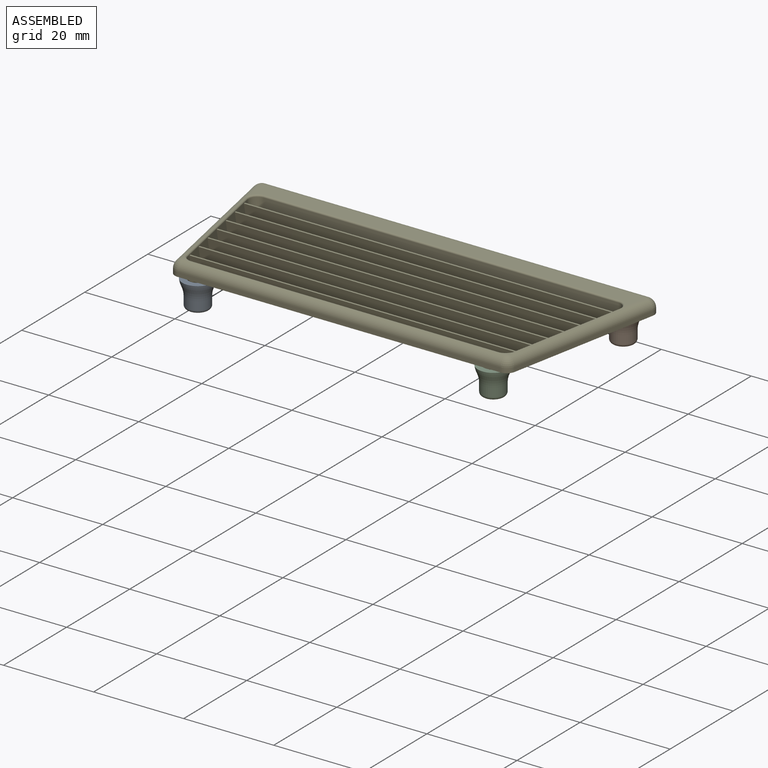
[diagram: assembled view]
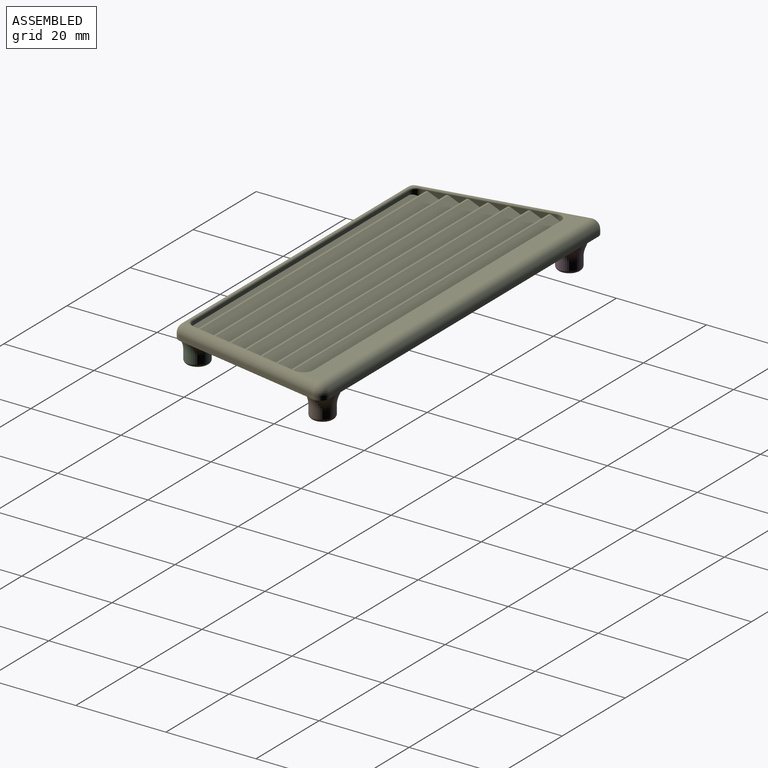
[diagram: assembled view, second angle]
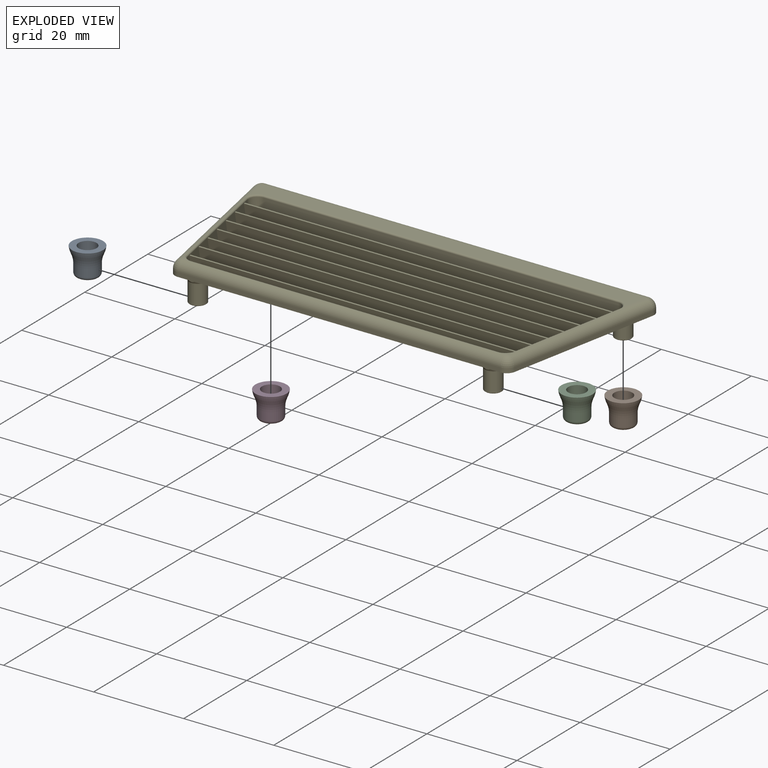
[diagram: exploded view]
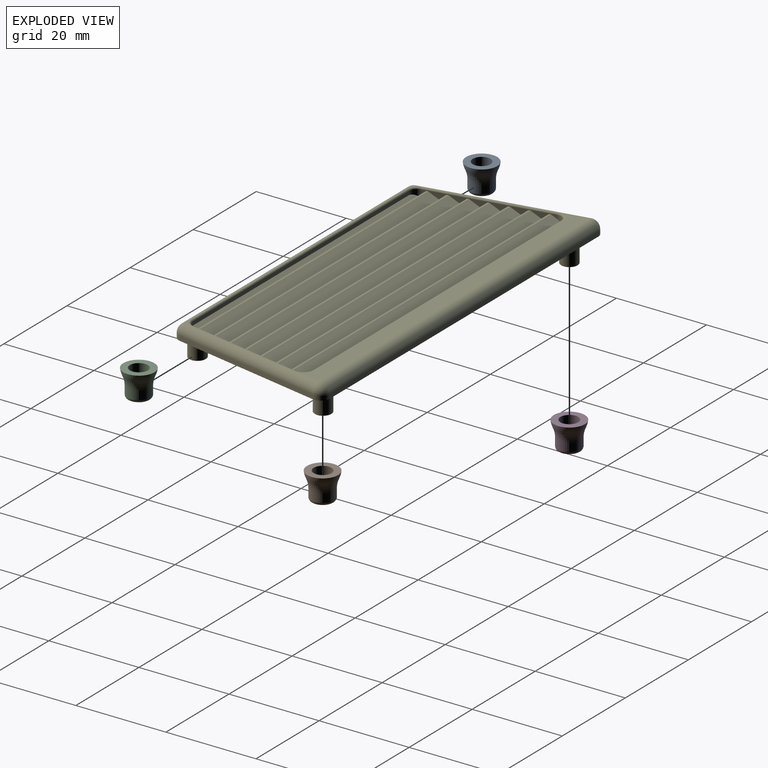
[diagram: exploded view, second angle]
ASSEMBLY  parts=5 mates=2
PART A: 12 faces, bbox 8.8x8.8x7.1 mm
  f0: cylinder r=2.6mm len=5.2mm, axis (0,0,-1), area 29.2mm2, adj f6,f10
  f1: plane 3.7x3.7mm, normal (0,0,1), area 7.1mm2, adj f5,f6
  f2: plane 6.91x6.91mm, normal (0,0,-1), area 24.9mm2, adj f3,f11
  f3: cylinder r=2mm len=4.66mm, axis (0,0,-1), area 58.5mm2, adj f2,f9
  f4: plane 3.32x3.32mm, normal (0,0,-1), area 5mm2, adj f5,f8
  f5: cylinder r=1.07mm len=2.15mm, axis (0,0,-1), area 6.8mm2, adj f1,f4
  f6: torus R=1.85mm, axis (0,0,1), area 17.2mm2, adj f0,f1
  f7: cone r=2mm half-angle=45deg, axis (0,0,-1), area 4mm2, adj f8,f9
  f8: torus R=1.66mm, axis (0,0,1), area 0.8mm2, adj f4,f7
  f9: torus R=1.9mm, axis (0,0,1), area 1mm2, adj f3,f7
  f10: torus R=7.6mm, axis (0,0,-1), area 36.9mm2, adj f0,f11
  f11: revolved ~6.91x6.91mm, area 30mm2, adj f2,f10
PART B: same geometry as A
PART C: same geometry as A
PART D: same geometry as A
PART E: 99 faces, bbox 89.1x38.4x8 mm
  f0: plane 76.04x2.5mm, normal (0,-0.97,-0.26), area 196.5mm2, adj f2,f3,f5,f6
  f1: plane 77.3x0.5mm, normal (0,1,0), area 38.6mm2, adj f3,f4,f5,f6
  f2: plane 75.94x0.4mm, normal (0,0,1), area 30.5mm2, adj f0,f4,f5,f6
  f3: plane 89.14x38.25mm, normal (0,0,-1), area 2657.4mm2, adj f0,f1,f5,f6,f8,f10,f12,f13
  f4: plane 77.3x3.46mm, normal (0,0.5,0.87), area 306.5mm2, adj f1,f2,f5,f6
  f5: plane 26.25x5.15mm, normal (-0.98,0.19,0), area 34.1mm2, adj f0,f1,f2,f3,f4,f7,f8,f9
  f6: plane 26.25x5.15mm, normal (0.98,0.19,0), area 34.1mm2, adj f0,f1,f2,f3,f4,f7,f8,f9
  f7: plane 72.59x2.25mm, normal (0,0.5,0.87), area 186.2mm2, adj f5,f6,f8,f37,f41,f42
  f8: plane 72.59x0.5mm, normal (0,1,0), area 36.3mm2, adj f3,f5,f6,f7
  f9: plane 82.71x3.46mm, normal (0,0.5,0.87), area 328.5mm2, adj f5,f6,f11,f38,f43,f44
  f10: plane 82.32x2.5mm, normal (0,-0.97,-0.26), area 212.7mm2, adj f3,f5,f6,f11
  f11: plane 82.21x0.4mm, normal (0,0,1), area 33mm2, adj f5,f6,f9,f10
  f12: plane 80.75x2.5mm, normal (0,-0.97,-0.26), area 208.7mm2, adj f3,f5,f6,f14
  f13: plane 82x0.5mm, normal (0,1,0), area 41mm2, adj f3,f5,f6,f15
  f14: plane 80.64x0.4mm, normal (0,0,1), area 32.4mm2, adj f5,f6,f12,f15
  f15: plane 82x3.46mm, normal (0,0.5,0.87), area 325.3mm2, adj f5,f6,f13,f14
  f16: plane 79.18x2.5mm, normal (0,-0.97,-0.26), area 204.6mm2, adj f3,f5,f6,f18
  f17: plane 80.43x0.5mm, normal (0,1,0), area 40.2mm2, adj f3,f5,f6,f19
  f18: plane 79.08x0.4mm, normal (0,0,1), area 31.8mm2, adj f5,f6,f16,f19
  f19: plane 80.43x3.46mm, normal (0,0.5,0.87), area 319mm2, adj f5,f6,f17,f18
  f20: plane 77.61x2.5mm, normal (0,-0.97,-0.26), area 200.5mm2, adj f3,f5,f6,f22
  f21: plane 78.87x0.5mm, normal (0,1,0), area 39.4mm2, adj f3,f5,f6,f23
  f22: plane 77.51x0.4mm, normal (0,0,1), area 31.1mm2, adj f5,f6,f20,f23
  f23: plane 78.87x3.46mm, normal (0,0.5,0.87), area 312.7mm2, adj f5,f6,f21,f22
  f24: plane 74.47x2.5mm, normal (0,-0.97,-0.26), area 192.4mm2, adj f3,f5,f6,f26
  f25: plane 75.73x0.5mm, normal (0,1,0), area 37.9mm2, adj f3,f5,f6,f27
  f26: plane 74.37x0.4mm, normal (0,0,1), area 29.9mm2, adj f5,f6,f24,f27
  f27: plane 75.73x3.46mm, normal (0,0.5,0.87), area 300.2mm2, adj f5,f6,f25,f26
  f28: plane 72.91x2.5mm, normal (0,-0.97,-0.26), area 188.4mm2, adj f3,f5,f6,f30
  f29: plane 74.16x0.5mm, normal (0,1,0), area 37.1mm2, adj f3,f5,f6,f31
  f30: plane 72.8x0.4mm, normal (0,0,1), area 29.2mm2, adj f5,f6,f28,f31
  f31: plane 74.16x3.46mm, normal (0,0.5,0.87), area 293.9mm2, adj f5,f6,f29,f30
  f32: plane 0.49x0.4mm, normal (0,0,1), area 0.1mm2, adj f52,f56,f67
  f33: plane 85.14x5.17mm, normal (0,0,1), area 310.4mm2, adj f49,f53,f56,f57,f58,f59
  f34: plane 71.71x1.19mm, normal (0,-1,0), area 72mm2, adj f3,f45,f48,f52,f95,f96
  f35: plane 34.25x6.72mm, normal (0.98,-0.19,0), area 34.9mm2, adj f3,f45,f46,f56
  f36: plane 85.14x1mm, normal (0,1,0), area 85.1mm2, adj f3,f46,f47,f53
  f37: plane 68.42x0.81mm, normal (0,1,0), area 55.7mm2, adj f7,f41,f42,f70
  f38: plane 78.71x2.15mm, normal (0,-1,0), area 169.2mm2, adj f9,f43,f44,f57
  f39: plane 34.25x6.72mm, normal (-0.98,-0.19,0), area 34.9mm2, adj f3,f47,f48,f49
  f40: plane 0.49x0.4mm, normal (0,0,1), area 0.1mm2, adj f49,f52,f66
  f41: cylinder r=2mm len=1.96mm, axis (0,0,1), area 3.2mm2, adj f5,f7,f37,f65,f67,f69
  f42: cylinder r=2mm len=1.96mm, axis (0,0,-1), area 3.2mm2, adj f6,f7,f37,f64,f66,f68
  f43: cylinder r=2mm len=2.39mm, axis (0,0,-1), area 5.8mm2, adj f6,f9,f38,f58,f60
  f44: cylinder r=2mm len=2.39mm, axis (0,0,1), area 5.8mm2, adj f5,f9,f38,f59,f61
  f45: cylinder r=2mm len=1.96mm, axis (0,0,-1), area 2.8mm2, adj f3,f34,f35,f54
  f46: cylinder r=2mm len=2.39mm, axis (0,0,1), area 3.5mm2, adj f3,f35,f36,f55
  f47: cylinder r=2mm len=2.39mm, axis (0,0,-1), area 3.5mm2, adj f3,f36,f39,f51
  f48: cylinder r=2mm len=1.96mm, axis (0,0,1), area 2.8mm2, adj f3,f34,f39,f50
  f49: cylinder r=2mm len=34.64mm, axis (-0.19,0.98,0), area 97.5mm2, adj f33,f39,f40,f50,f51,f60,f62,f64
  f50: sphere r=2mm, area 5.5mm2, adj f48,f49,f52
  f51: sphere r=2mm, area 7.1mm2, adj f47,f49,f53
  f52: cylinder r=2mm len=71.71mm, axis (-1,0,0), area 195.3mm2, adj f32,f34,f40,f50,f54,f68,f69,f70
  f53: cylinder r=2mm len=85.14mm, axis (1,0,0), area 267.5mm2, adj f33,f36,f51,f55
  f54: sphere r=2mm, area 5.5mm2, adj f45,f52,f56
  f55: sphere r=2mm, area 7.1mm2, adj f46,f53,f56
  f56: cylinder r=2mm len=34.64mm, axis (-0.19,-0.98,0), area 97.5mm2, adj f32,f33,f35,f54,f55,f61,f63,f65
  f57: cylinder r=0.35mm len=78.71mm, axis (-1,0,0), area 43.3mm2, adj f33,f38,f58,f59
  f58: torus R=2.35mm, axis (0,0,1), area 1.4mm2, adj f33,f43,f57,f60
  f59: torus R=2.35mm, axis (0,0,1), area 1.4mm2, adj f33,f44,f57,f61
  f60: bspline ~1.8x0.62mm, area 0.7mm2, adj f43,f49,f58,f62
  f61: bspline ~1.8x0.62mm, area 0.7mm2, adj f44,f56,f59,f63
  f62: cylinder r=0.35mm len=26.33mm, axis (-0.19,0.98,0), area 16.7mm2, adj f6,f49,f60,f64
  f63: cylinder r=0.35mm len=26.33mm, axis (-0.19,-0.98,0), area 16.7mm2, adj f5,f56,f61,f65
  f64: bspline ~1.65x1.17mm, area 0.7mm2, adj f42,f49,f62,f66
  f65: bspline ~1.65x1.17mm, area 0.7mm2, adj f41,f56,f63,f67
  f66: torus R=2.35mm, axis (0,0,1), area 0.3mm2, adj f40,f42,f64,f68
  f67: torus R=2.35mm, axis (0,0,1), area 0.3mm2, adj f32,f41,f65,f69
  f68: bspline ~1.73x0.83mm, area 0.7mm2, adj f42,f52,f66,f70
  f69: bspline ~1.73x0.83mm, area 0.7mm2, adj f41,f52,f67,f70
  f70: cylinder r=0.35mm len=68.42mm, axis (-1,0,0), area 42.7mm2, adj f37,f52,f68,f69
  f71: cylinder r=1.88mm len=4.4mm, axis (0,0,1), area 51.8mm2, adj f89,f95
  f72: plane 3.55x3.55mm, normal (0,0,-1), area 5.2mm2, adj f89,f92
  f73: cylinder r=1.88mm len=4.4mm, axis (0,0,1), area 51.8mm2, adj f88,f98
  f74: plane 3.55x3.55mm, normal (0,0,-1), area 5.2mm2, adj f88,f91
  f75: cylinder r=1.88mm len=4.4mm, axis (0,0,1), area 51.8mm2, adj f90,f96
  f76: plane 3.55x3.55mm, normal (0,0,-1), area 5.2mm2, adj f90,f93
  f77: cylinder r=1.88mm len=4.4mm, axis (0,0,1), area 51.8mm2, adj f87,f97
  f78: plane 3.55x3.55mm, normal (0,0,-1), area 5.2mm2, adj f87,f94
  f79: cone r=0mm half-angle=59deg, axis (0,0,-1), area 4.2mm2, adj f80
  f80: cylinder r=1.07mm len=4.85mm, axis (0,0,-1), area 32.8mm2, adj f79,f94
  f81: cone r=0mm half-angle=59deg, axis (0,0,-1), area 4.2mm2, adj f82
  f82: cylinder r=1.07mm len=4.85mm, axis (0,0,-1), area 32.8mm2, adj f81,f93
  f83: cone r=0mm half-angle=59deg, axis (0,0,-1), area 4.2mm2, adj f84
  f84: cylinder r=1.07mm len=4.85mm, axis (0,0,-1), area 32.8mm2, adj f83,f91
  f85: cone r=0mm half-angle=59deg, axis (0,0,-1), area 4.2mm2, adj f86
  f86: cylinder r=1.07mm len=4.85mm, axis (0,0,-1), area 32.8mm2, adj f85,f92
  f87: cone r=1.88mm half-angle=45deg, axis (0,0,1), area 1.6mm2, adj f77,f78
  f88: cone r=1.78mm half-angle=45deg, axis (0,0,1), area 1.6mm2, adj f73,f74
  f89: cone r=1.78mm half-angle=45deg, axis (0,0,1), area 1.6mm2, adj f71,f72
  f90: cone r=1.88mm half-angle=45deg, axis (0,0,1), area 1.6mm2, adj f75,f76
  f91: cone r=1.07mm half-angle=45deg, axis (0,0,-1), area 1.5mm2, adj f74,f84
  f92: cone r=1.07mm half-angle=45deg, axis (0,0,-1), area 1.5mm2, adj f72,f86
  f93: cone r=1.07mm half-angle=45deg, axis (0,0,-1), area 1.5mm2, adj f76,f82
  f94: cone r=1.07mm half-angle=45deg, axis (0,0,-1), area 1.5mm2, adj f78,f80
  f95: cone r=1.88mm half-angle=30deg, axis (0,0,1), area 7.1mm2, adj f3,f34,f71
  f96: cone r=2.16mm half-angle=30deg, axis (0,0,1), area 7.1mm2, adj f3,f34,f75
  f97: cone r=2.16mm half-angle=30deg, axis (0,0,1), area 7.3mm2, adj f3,f77
  f98: cone r=1.88mm half-angle=30deg, axis (0,0,1), area 7.3mm2, adj f3,f73
PLACE A rot(axis=(0,1,0),180deg) t=(-73.51,-19.85,9.28)mm
PLACE B rot(axis=(0,1,0),180deg) t=(-1.58,12.34,9.43)mm
PLACE C rot(axis=(0,1,0),180deg) t=(-7.89,-19.85,9.43)mm
PLACE D rot(axis=(0,1,0),180deg) t=(-79.82,12.34,9.35)mm
PLACE E t=(-16.91,-7.19,9.51)mm
MATE slider D.f0 <-> E.f83  axis (0,0,1) through (-59.15,12.16,5.89)mm
MATE slider E.f79 <-> B.f0  axis (0,0,-1) through (19.09,12.16,4.51)mm
